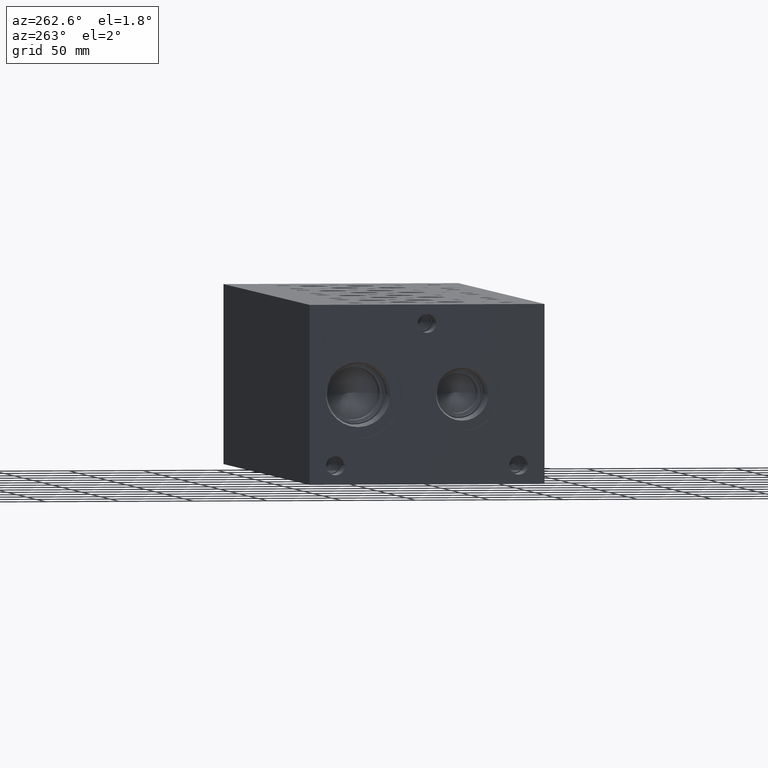
[diagram: clean part render]
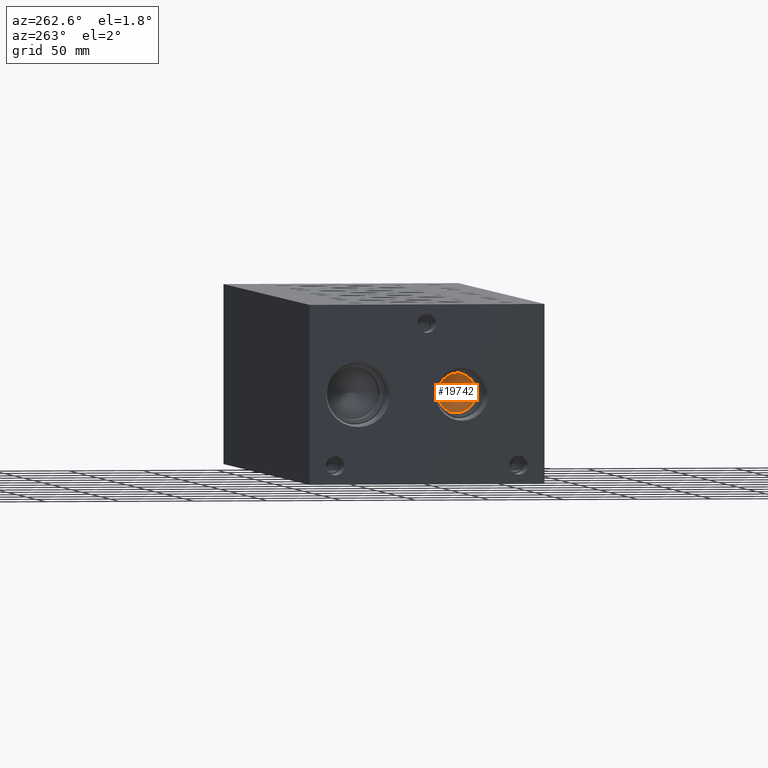
[diagram: same view with one face highlighted and labeled with its STEP entity id]
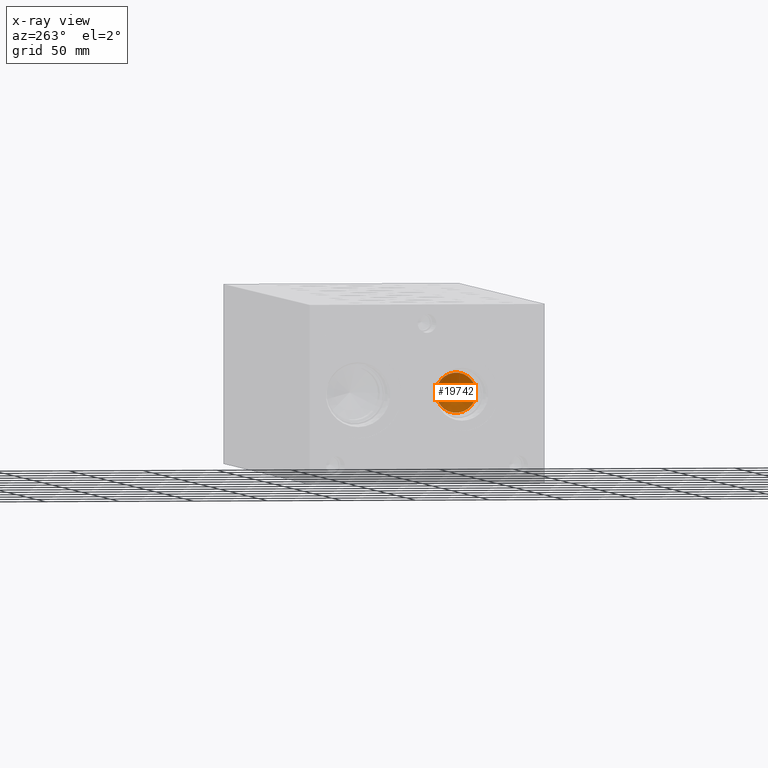
[diagram: x-ray of the same camera — body ghosted, the highlighted face saturated]
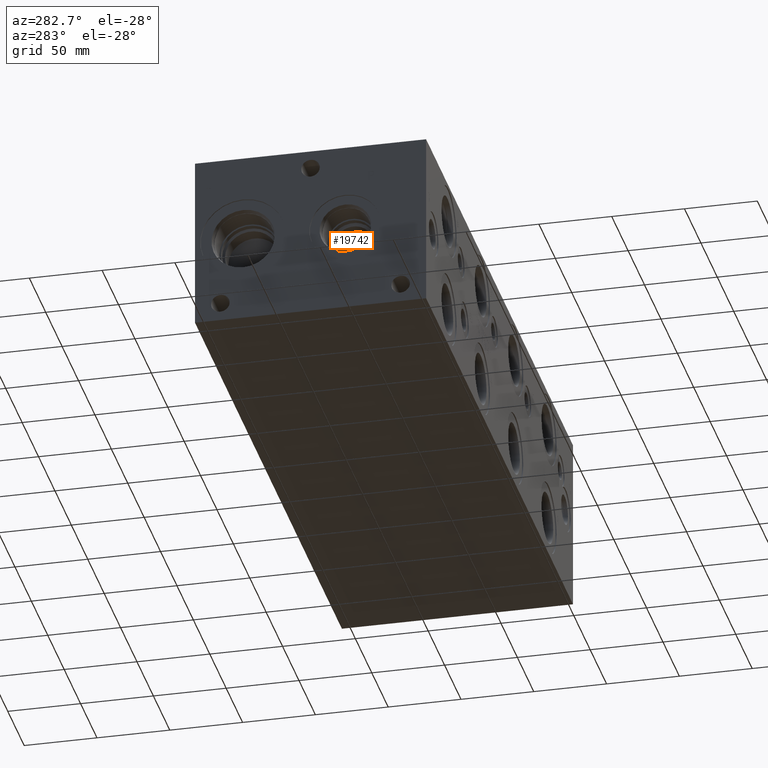
[diagram: same view with one face highlighted and labeled with its STEP entity id]
A machine part, auxiliary view. The second image highlights one B-rep face of the part: STEP entity #19742.
The next image is the same camera in x-ray: the body ghosted, the highlighted face saturated — about 0% of this face is hidden behind the body in this view.
A second angle (auxiliary view) of the same face is appended — the face is thin or edge-on in the first view.
In plain terms, the highlighted conical surface has half-angle 60 deg.
Its self-contained STEP definition (entity closure, byte-faithful):
#225=CONICAL_SURFACE('',#20780,6.75005,1.0471975511966);
#479=CIRCLE('',#20781,13.5001);
#480=CIRCLE('',#20782,13.5001);
#2420=FACE_OUTER_BOUND('',#3577,.T.);
#3577=EDGE_LOOP('',(#16021,#16022,#16023,#16024));
#5526=LINE('',#32550,#7297);
#7297=VECTOR('',#24510,6.75005);
#8881=VERTEX_POINT('',#32546);
#8882=VERTEX_POINT('',#32547);
#8883=VERTEX_POINT('',#32549);
#11425=EDGE_CURVE('',#8881,#8882,#479,.T.);
#11426=EDGE_CURVE('',#8882,#8883,#5526,.T.);
#11427=EDGE_CURVE('',#8882,#8881,#480,.T.);
#16021=ORIENTED_EDGE('',*,*,#11425,.T.);
#16022=ORIENTED_EDGE('',*,*,#11426,.T.);
#16023=ORIENTED_EDGE('',*,*,#11426,.F.);
#16024=ORIENTED_EDGE('',*,*,#11427,.T.);
#19742=ADVANCED_FACE('',(#2420),#225,.F.);
#20780=AXIS2_PLACEMENT_3D('',#32545,#24506,#24507);
#20781=AXIS2_PLACEMENT_3D('',#32548,#24508,#24509);
#20782=AXIS2_PLACEMENT_3D('',#32551,#24511,#24512);
#24506=DIRECTION('center_axis',(-1.,0.,0.));
#24507=DIRECTION('ref_axis',(0.,1.,0.));
#24508=DIRECTION('center_axis',(-1.,0.,0.));
#24509=DIRECTION('ref_axis',(0.,1.,0.));
#24510=DIRECTION('',(0.5,0.866025403784439,-1.06057523872491E-16));
#24511=DIRECTION('center_axis',(-1.,0.,0.));
#24512=DIRECTION('ref_axis',(0.,1.,0.));
#32545=CARTESIAN_POINT('Origin',(36.4411731845434,55.5752,60.325));
#32546=CARTESIAN_POINT('',(32.54403,69.0753,60.325));
#32547=CARTESIAN_POINT('',(32.54403,42.0751,60.325));
#32548=CARTESIAN_POINT('Origin',(32.54403,55.5752,60.325));
#32549=CARTESIAN_POINT('',(40.3383163690869,55.5752,60.325));
#32550=CARTESIAN_POINT('',(36.4411731845434,48.82515,60.325));
#32551=CARTESIAN_POINT('Origin',(32.54403,55.5752,60.325));